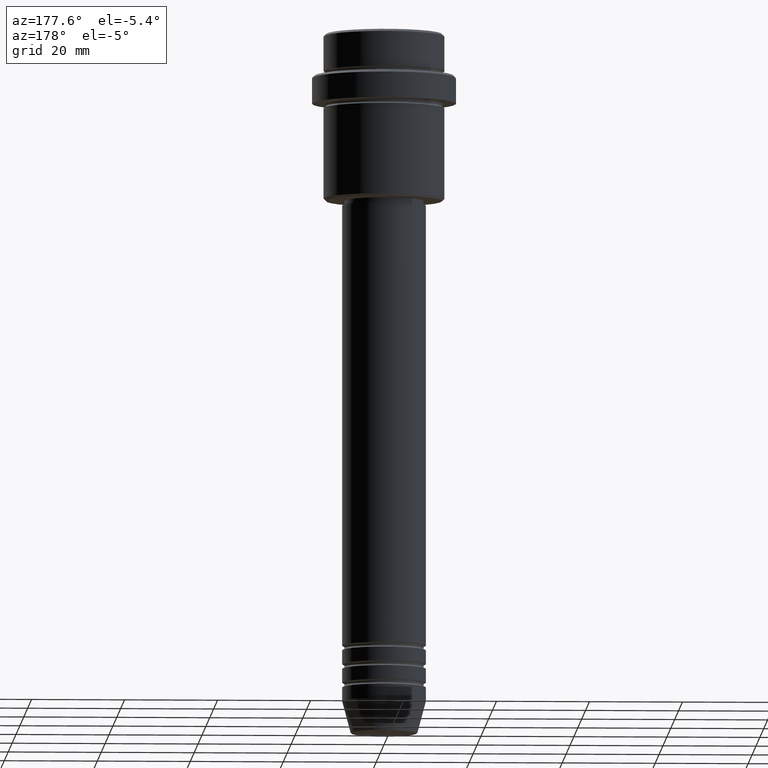
[diagram: clean part render]
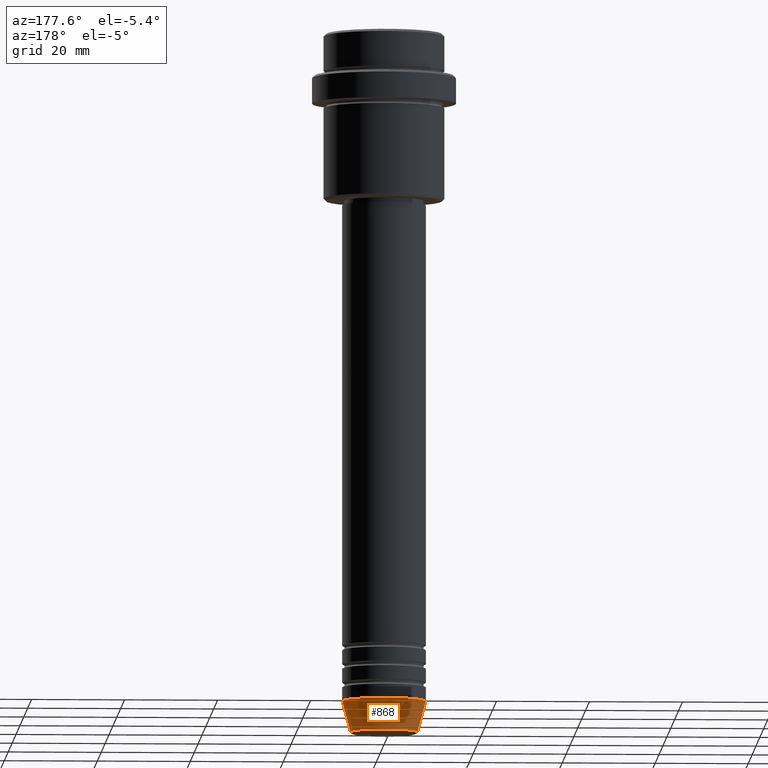
[diagram: same view with one face highlighted and labeled with its STEP entity id]
A machine part, auxiliary view. The second image highlights one B-rep face of the part: STEP entity #868.
In plain terms, the highlighted conical surface has half-angle 15 deg.
Its self-contained STEP definition (entity closure, byte-faithful):
#2 = ORIENTED_EDGE ( 'NONE', *, *, #1120, .F. ) ;
#9 = VERTEX_POINT ( 'NONE', #414 ) ;
#48 = DIRECTION ( 'NONE',  ( -0.2588190451025222938, 3.169619151431783430E-17, 0.9659258262890678681 ) ) ;
#66 = CARTESIAN_POINT ( 'NONE',  ( -9.000000000000000000, 1.102182119232617714E-15, -144.0000000000000000 ) ) ;
#80 = ORIENTED_EDGE ( 'NONE', *, *, #468, .F. ) ;
#148 = CARTESIAN_POINT ( 'NONE',  ( -7.223655072137193045, 9.934123627281765110E-16, -150.6294095225512137 ) ) ;
#150 = EDGE_LOOP ( 'NONE', ( #828, #510, #2, #80 ) ) ;
#191 = CARTESIAN_POINT ( 'NONE',  ( 0.000000000000000000, 0.000000000000000000, -144.0000000000000000 ) ) ;
#206 = VERTEX_POINT ( 'NONE', #148 ) ;
#219 = DIRECTION ( 'NONE',  ( 1.000000000000000000, 0.000000000000000000, 0.000000000000000000 ) ) ;
#274 = EDGE_CURVE ( 'NONE', #206, #290, #403, .T. ) ;
#290 = VERTEX_POINT ( 'NONE', #1255 ) ;
#394 = AXIS2_PLACEMENT_3D ( 'NONE', #979, #1323, #219 ) ;
#403 = LINE ( 'NONE', #66, #989 ) ;
#414 = CARTESIAN_POINT ( 'NONE',  ( 9.000000000000000000, 0.000000000000000000, -144.0000000000000000 ) ) ;
#468 = EDGE_CURVE ( 'NONE', #819, #9, #751, .T. ) ;
#510 = ORIENTED_EDGE ( 'NONE', *, *, #274, .T. ) ;
#535 = CARTESIAN_POINT ( 'NONE',  ( 9.000000000000000000, 0.000000000000000000, -144.0000000000000000 ) ) ;
#554 = AXIS2_PLACEMENT_3D ( 'NONE', #1042, #1172, #1280 ) ;
#639 = CARTESIAN_POINT ( 'NONE',  ( 7.223655072137193045, 0.000000000000000000, -150.6294095225512137 ) ) ;
#665 = CONICAL_SURFACE ( 'NONE', #808, 9.000000000000000000, 0.2617993877991510177 ) ;
#729 = DIRECTION ( 'NONE',  ( 1.000000000000000000, 0.000000000000000000, 0.000000000000000000 ) ) ;
#739 = CIRCLE ( 'NONE', #554, 9.000000000000000000 ) ;
#751 = LINE ( 'NONE', #535, #1379 ) ;
#808 = AXIS2_PLACEMENT_3D ( 'NONE', #191, #1075, #729 ) ;
#819 = VERTEX_POINT ( 'NONE', #639 ) ;
#828 = ORIENTED_EDGE ( 'NONE', *, *, #1283, .T. ) ;
#864 = FACE_OUTER_BOUND ( 'NONE', #150, .T. ) ;
#868 = ADVANCED_FACE ( 'NONE', ( #864 ), #665, .T. ) ;
#979 = CARTESIAN_POINT ( 'NONE',  ( 0.000000000000000000, 0.000000000000000000, -150.6294095225512137 ) ) ;
#989 = VECTOR ( 'NONE', #48, 1000.000000000000000 ) ;
#1042 = CARTESIAN_POINT ( 'NONE',  ( 0.000000000000000000, 0.000000000000000000, -144.0000000000000000 ) ) ;
#1075 = DIRECTION ( 'NONE',  ( -0.000000000000000000, -0.000000000000000000, 1.000000000000000000 ) ) ;
#1080 = CIRCLE ( 'NONE', #394, 7.223655072137193045 ) ;
#1093 = DIRECTION ( 'NONE',  ( 0.2588190451025222938, 0.000000000000000000, 0.9659258262890678681 ) ) ;
#1120 = EDGE_CURVE ( 'NONE', #9, #290, #739, .T. ) ;
#1172 = DIRECTION ( 'NONE',  ( -0.000000000000000000, -0.000000000000000000, 1.000000000000000000 ) ) ;
#1255 = CARTESIAN_POINT ( 'NONE',  ( -9.000000000000000000, 1.102182119232617714E-15, -144.0000000000000000 ) ) ;
#1280 = DIRECTION ( 'NONE',  ( 1.000000000000000000, 0.000000000000000000, 0.000000000000000000 ) ) ;
#1283 = EDGE_CURVE ( 'NONE', #819, #206, #1080, .T. ) ;
#1323 = DIRECTION ( 'NONE',  ( -0.000000000000000000, -0.000000000000000000, 1.000000000000000000 ) ) ;
#1379 = VECTOR ( 'NONE', #1093, 1000.000000000000000 ) ;